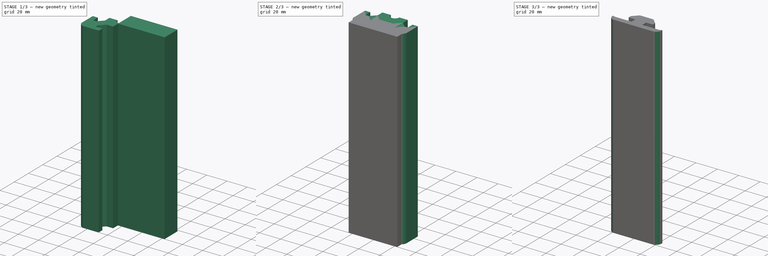
[diagram: build sequence overview — one tinted view per stage of 3, left to right]
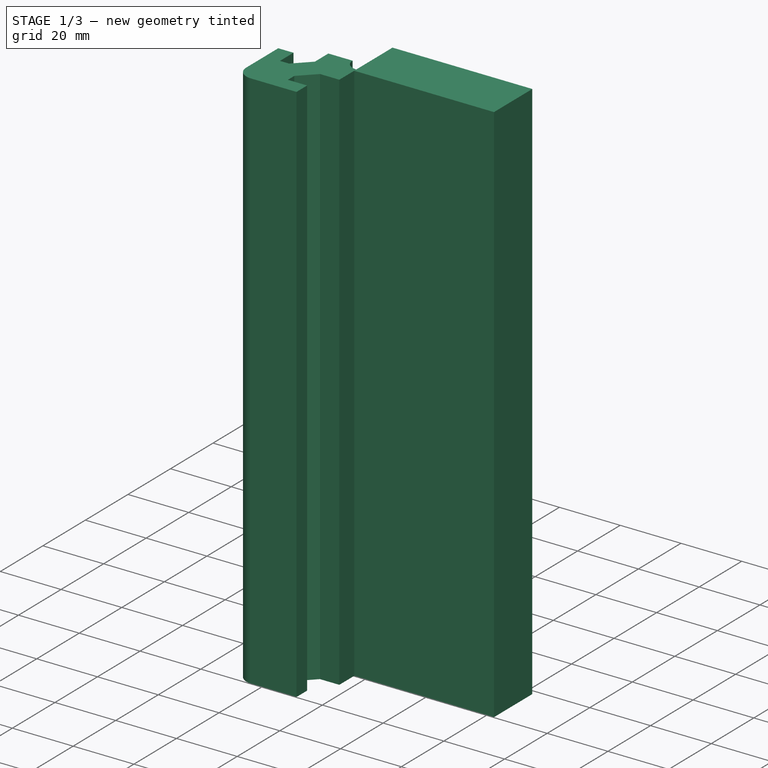
[diagram: stage 1 of 3 — iso view after this stage's code; geometry added in this stage tinted green]
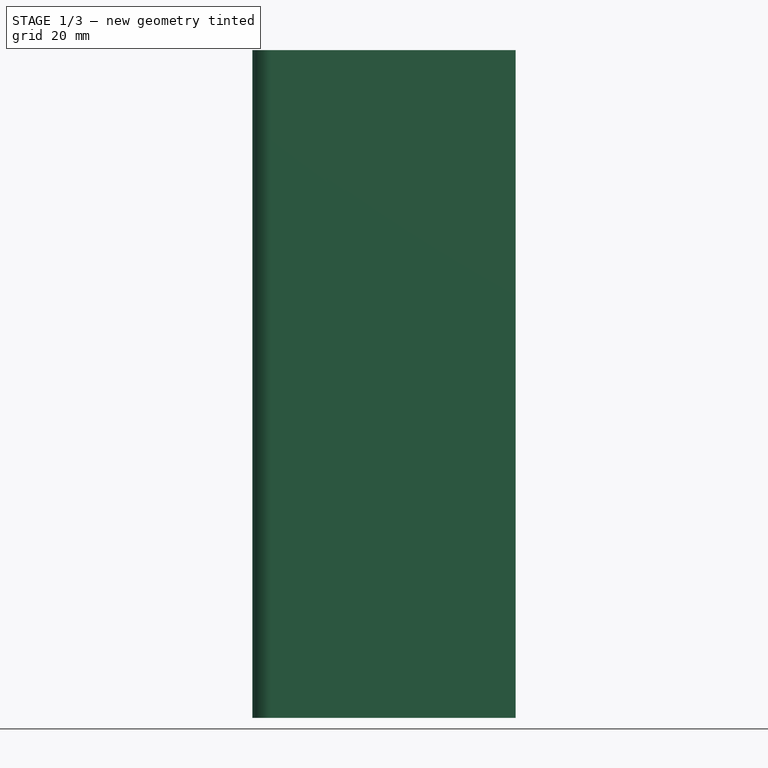
[diagram: stage 1 of 3 — front view after this stage's code; geometry added in this stage tinted green]
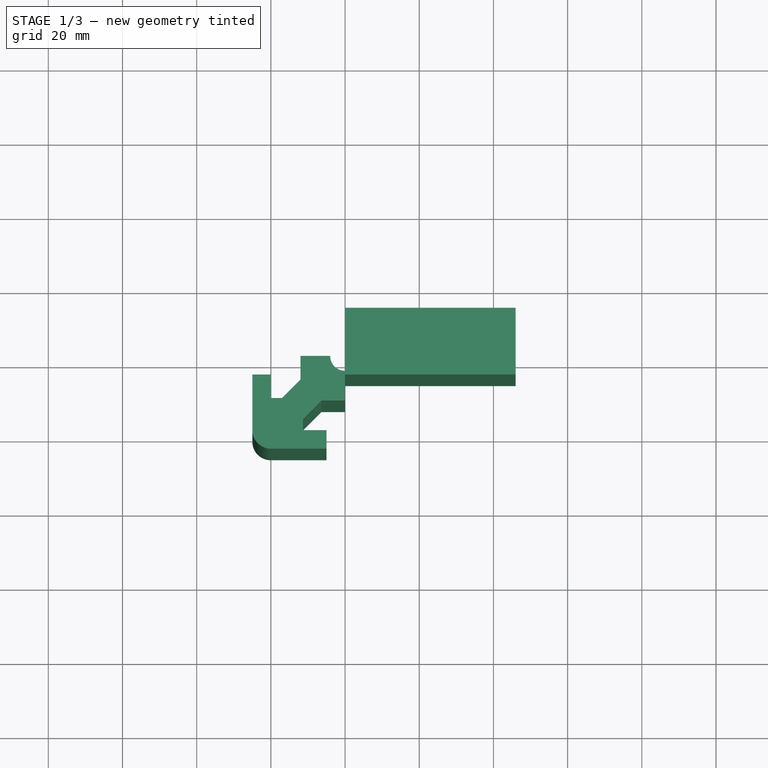
[diagram: stage 1 of 3 — top view after this stage's code; geometry added in this stage tinted green]
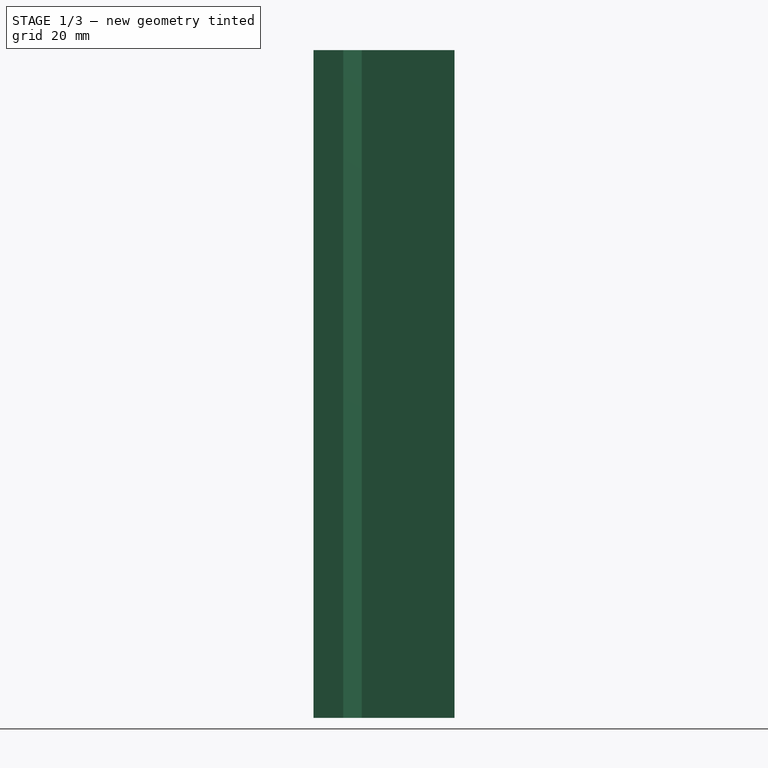
[diagram: stage 1 of 3 — right view after this stage's code; geometry added in this stage tinted green]
FCSTD DOCUMENT  (FreeCAD 0.15R4671 (Git))
Label: Untitled
License: CreativeCommons Attribution-NonCommercial-ShareAlike
LicenseURL: http://creativecommons.org/licenses/by-nc-sa/4.0/
objects: Sketcher::SketchObject×1, PartDesign::Pad×1, Part::Mirroring×1, Part::MultiFuse×1, Part::Box×1, Part::Cut×1, Part::Fillet×1
note: 8 computed .brp shape members not serialized (recipe doc carries the construction recipe); baked Part::Feature solids carry a one-line shape summary decoded from their .brp

FEATURE [Sketcher::SketchObject] Sketch
  sketch-geometry (17):
    g0: LineSegment StartX=-4.01 StartY=0 StartZ=0 EndX=-12.01 EndY=0 EndZ=0
    g1: LineSegment StartX=-12.01 StartY=0 StartZ=0 EndX=-12.01 EndY=-6.35315 EndZ=0
    g2: LineSegment StartX=-12.01 StartY=-6.35315 StartZ=0 EndX=-17 EndY=-11.3431 EndZ=0
    g3: LineSegment StartX=-17 StartY=-11.3431 StartZ=0 EndX=-20 EndY=-11.3431 EndZ=0
    g4: LineSegment StartX=-25 StartY=-5 StartZ=0 EndX=-25 EndY=-20 EndZ=0
    g5: LineSegment StartX=-20 StartY=-25 StartZ=0 EndX=-5 EndY=-25 EndZ=0
    g6: LineSegment StartX=-5 StartY=-25 StartZ=0 EndX=-5 EndY=-20 EndZ=0
    g7: LineSegment StartX=-5 StartY=-20 StartZ=0 EndX=-11.3431 EndY=-20 EndZ=0
    g8: LineSegment StartX=-11.3431 StartY=-20 StartZ=0 EndX=-11.3431 EndY=-17 EndZ=0
    g9: LineSegment StartX=-11.3431 StartY=-17 StartZ=0 EndX=-6.35315 EndY=-12.01 EndZ=0
    g10: LineSegment StartX=-6.35315 StartY=-12.01 StartZ=0 EndX=0 EndY=-12.01 EndZ=0
    g11: LineSegment StartX=0 StartY=-12.01 StartZ=0 EndX=0 EndY=-4.01 EndZ=0
    g12: ArcOfCircle CenterX=0 CenterY=0 CenterZ=0 NormalX=0 NormalY=0 NormalZ=1 Radius=4.01 StartAngle=3.14159 EndAngle=4.71239
    g13: LineSegment [constr] StartX=-12.01 StartY=-6.35315 StartZ=0 EndX=-6.35315 EndY=-12.01 EndZ=0
    g14: LineSegment StartX=-20 StartY=-11.3431 StartZ=0 EndX=-20 EndY=-5 EndZ=0
    g15: LineSegment StartX=-20 StartY=-5 StartZ=0 EndX=-25 EndY=-5 EndZ=0
    g16: ArcOfCircle CenterX=-20 CenterY=-20 CenterZ=0 NormalX=0 NormalY=0 NormalZ=1 Radius=5 StartAngle=3.14159 EndAngle=4.71239
  constraints (49):
    c: Coincident(g0,g1)
    c: Coincident(g1,g2)
    c: Coincident(g2,g3)
    c: Coincident(g5,g6)
    c: Coincident(g6,g7)
    c: Coincident(g7,g8)
    c: Coincident(g8,g9)
    c: Coincident(g9,g10)
    c: Coincident(g10,g11)
    c: Horizontal(g0)
    c: Vertical(g11)
    c: Radius(g12) = 4.01
    c: Coincident(g12,g-1)
    c: Equal(g0,g11)
    c: Vertical(g1)
    c: Horizontal(g10)
    c: Coincident(g1,g13)
    c: Coincident(g13,g9)
    c: Equal(g1,g10)
    c: Distance(g13) = 8
    c: Parallel(g2,g9)
    c: Vertical(g8)
    c: Horizontal(g3)
    c: Horizontal(g7)
    c: Horizontal(g5)
    c: DistanceY(g6) = 5
    c: DistanceX(g-1,g5) = -5
    c: Vertical(g6)
    c: DistanceY(g-1,g5) = -25
    c: Vertical(g4)
    c: Equal(g5,g4)
    c: Equal(g2,g9)
    c: Equal(g3,g8)
    c: Coincident(g14,g15)
    c: Coincident(g4,g15)
    c: Coincident(g3,g14)
    c: Equal(g6,g15)
    c: Vertical(g14)
    c: DistanceX(g3) = -3
    c: Coincident(g0,g12)
    c: Coincident(g11,g12)
    c: PointOnObject(g0,g-1)
    c: PointOnObject(g11,g-2)
    c: DistanceX(g0) = -8
    c: Horizontal(g15)
    c: Tangent(g4,g16) = -1.5708
    c: Tangent(g5,g16) = -1.5708
    c: DistanceX(g-1,g4) = -25
    c: Radius(g16) = 5
FEATURE [PartDesign::Pad] Pad
  Length = 180
  Length2 = 100
  Sketch = -> Sketch
  Type = 0
FEATURE [Part::Box] Box  label="Cubo"
  Height = 180
  Length = 46
  Placement = pos=(0,-5,0) rot=(0,0,1;0rad)
  Width = 18
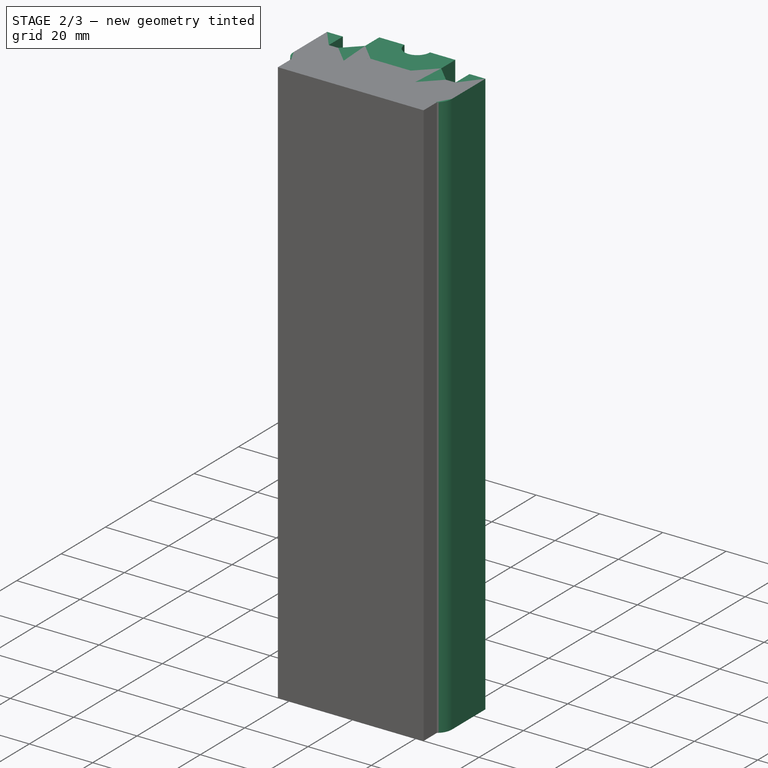
[diagram: stage 2 of 3 — iso view after this stage's code; geometry added in this stage tinted green]
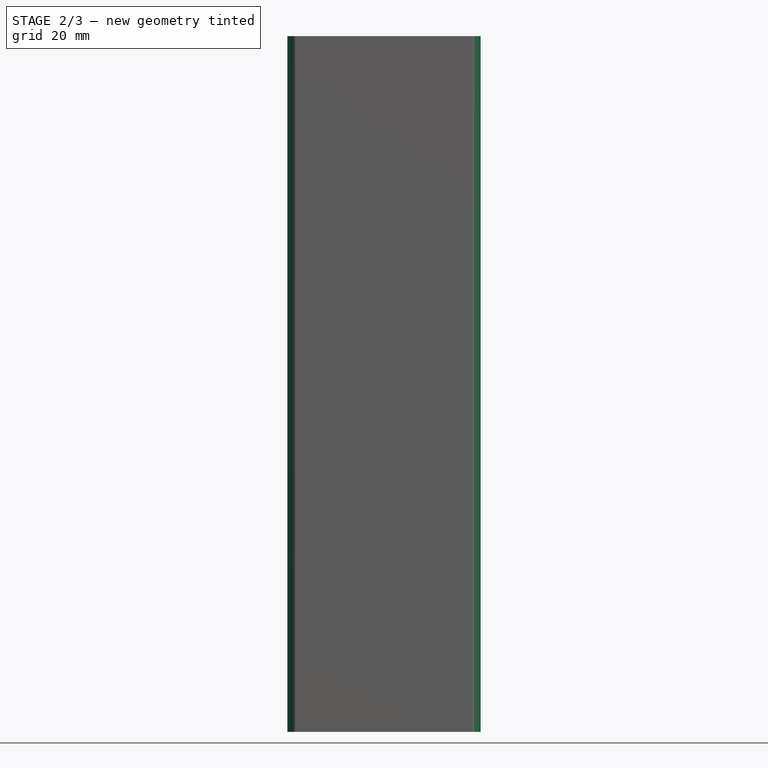
[diagram: stage 2 of 3 — front view after this stage's code; geometry added in this stage tinted green]
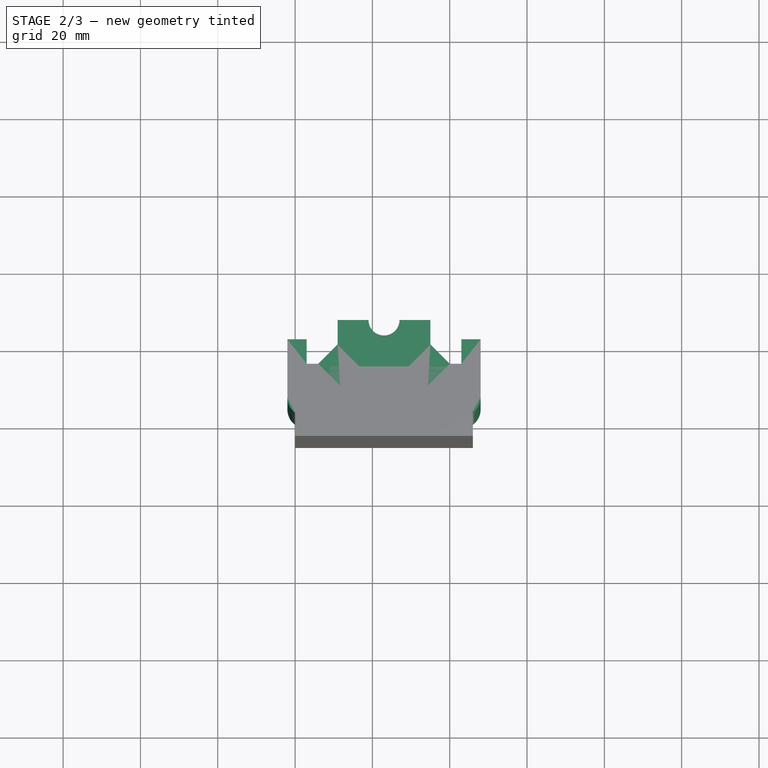
[diagram: stage 2 of 3 — top view after this stage's code; geometry added in this stage tinted green]
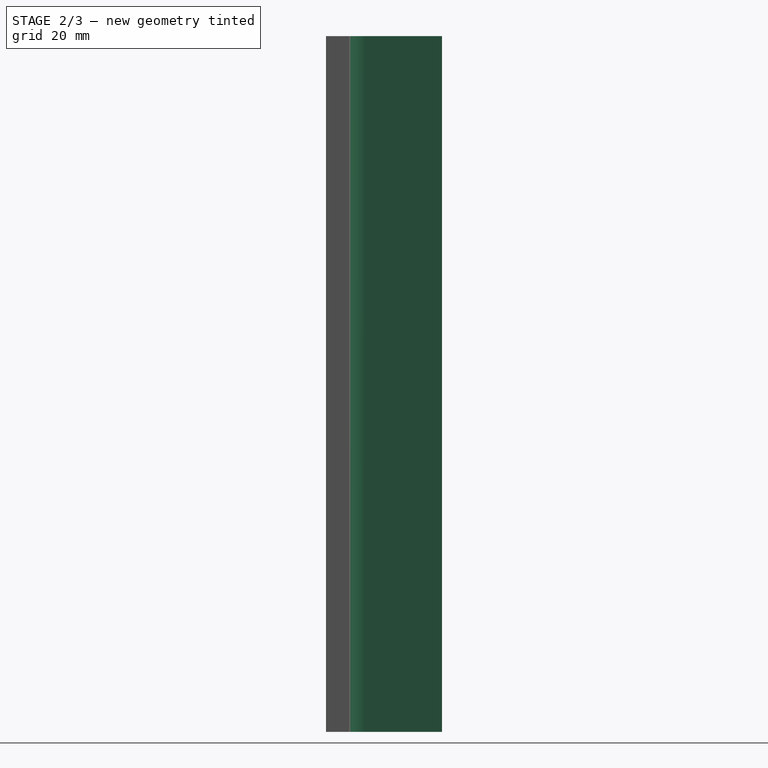
[diagram: stage 2 of 3 — right view after this stage's code; geometry added in this stage tinted green]
FEATURE [Part::Mirroring] Part__Mirroring  label="Pad (Mirror #1)"
  Base = (0,0,0)
  Normal = (0,1,0)
  Source = -> Pad
FEATURE [Part::MultiFuse] Fusion
  Placement = pos=(23,25,0) rot=(0,0,1;1.5708rad)
  Shapes = -> [Pad,Part__Mirroring]
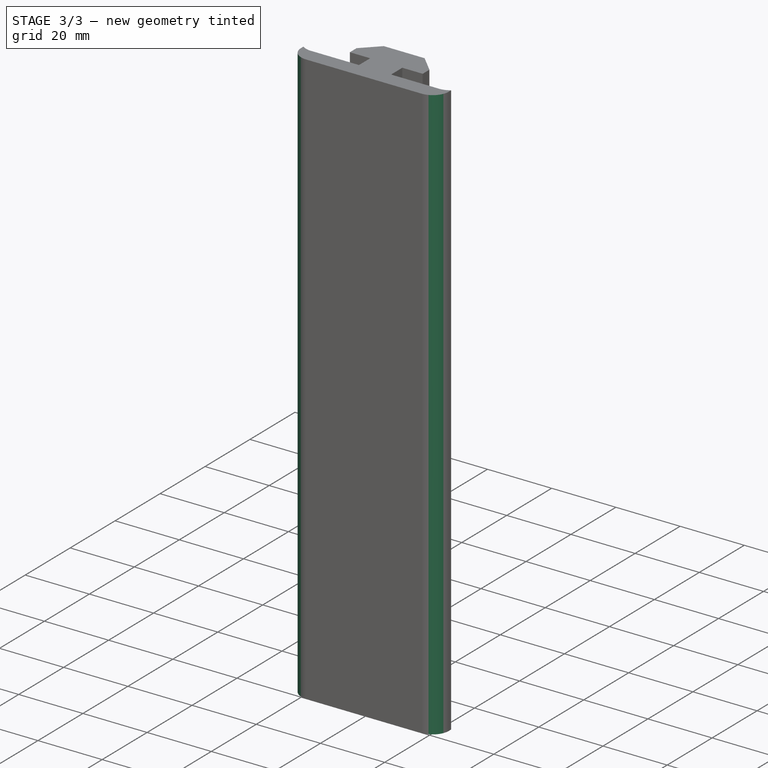
[diagram: stage 3 of 3 — iso view after this stage's code; geometry added in this stage tinted green]
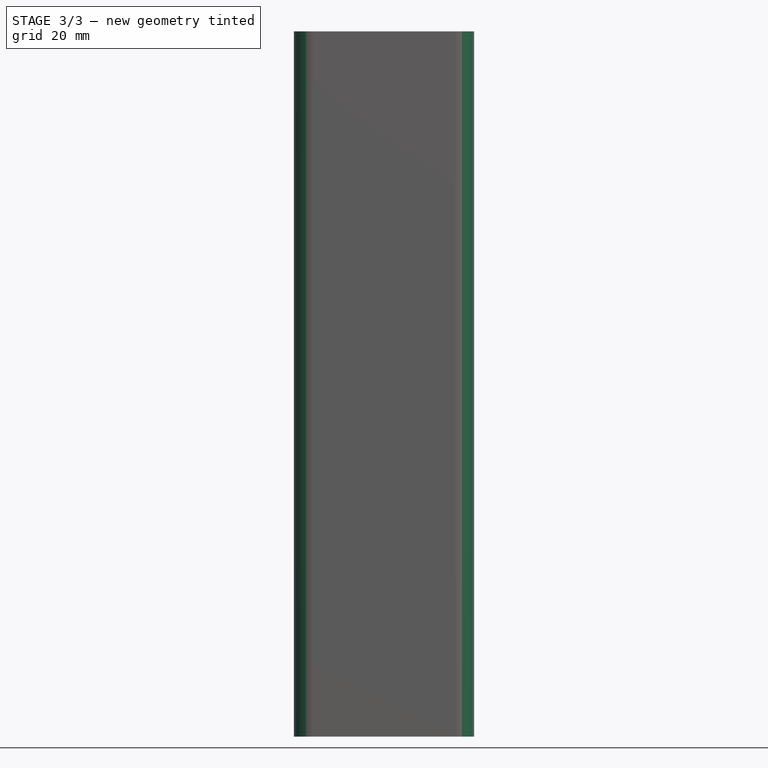
[diagram: stage 3 of 3 — front view after this stage's code; geometry added in this stage tinted green]
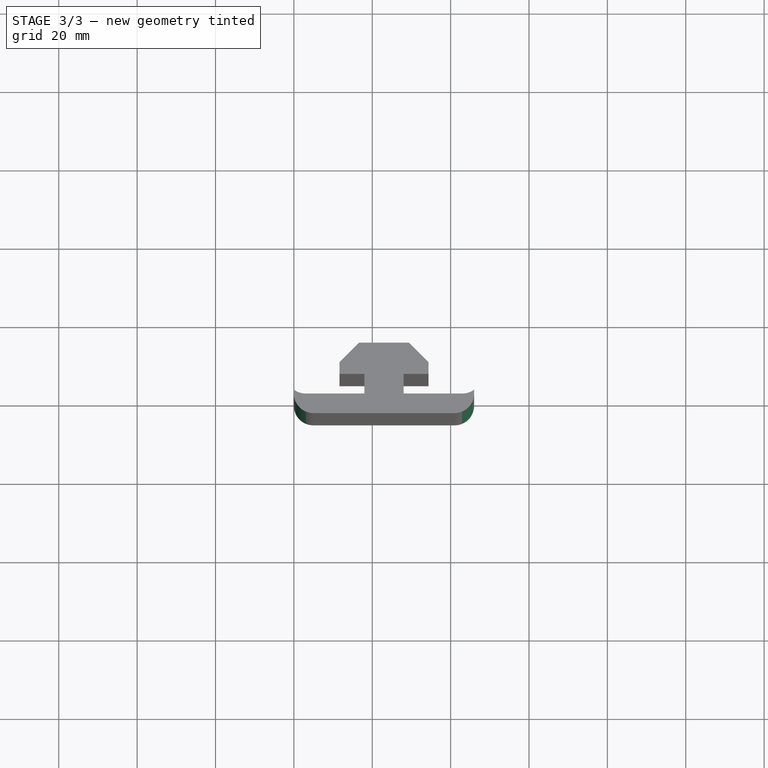
[diagram: stage 3 of 3 — top view after this stage's code; geometry added in this stage tinted green]
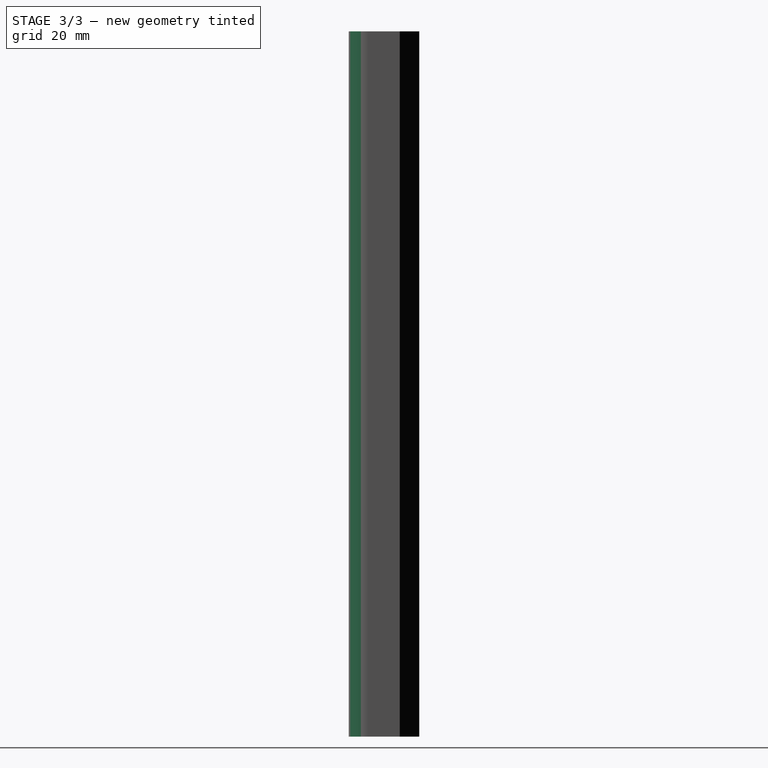
[diagram: stage 3 of 3 — right view after this stage's code; geometry added in this stage tinted green]
FEATURE [Part::Cut] Cut
  Base = -> Box
  Tool = -> Fusion
FEATURE [Part::Fillet] Fillet
  Base = -> Cut
  Edges = 2 edges r=5: [Edge4,Edge38]
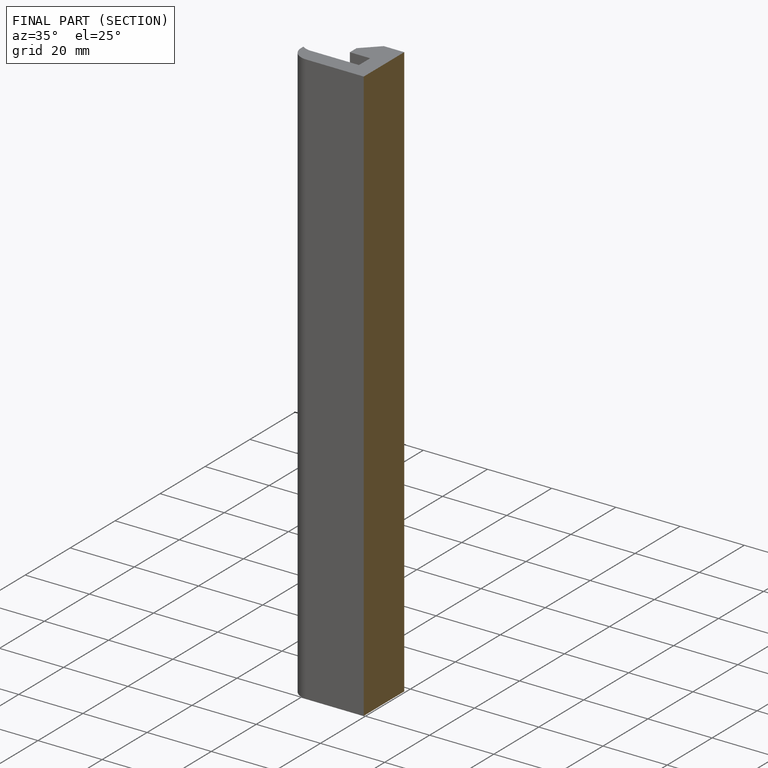
[diagram: finished part — half-section view (interior)]
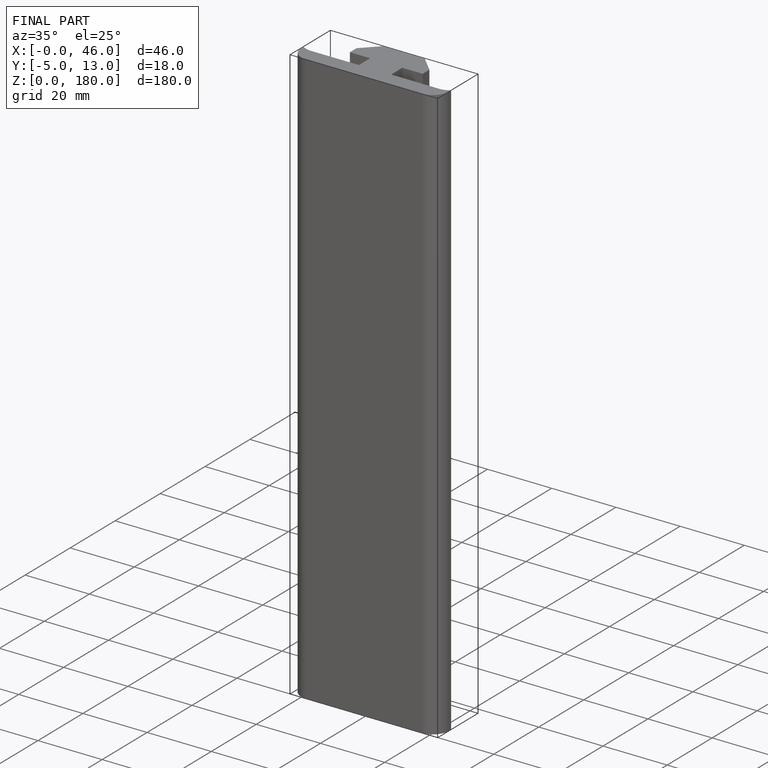
[diagram: finished part — iso view with bounding-box wireframe]
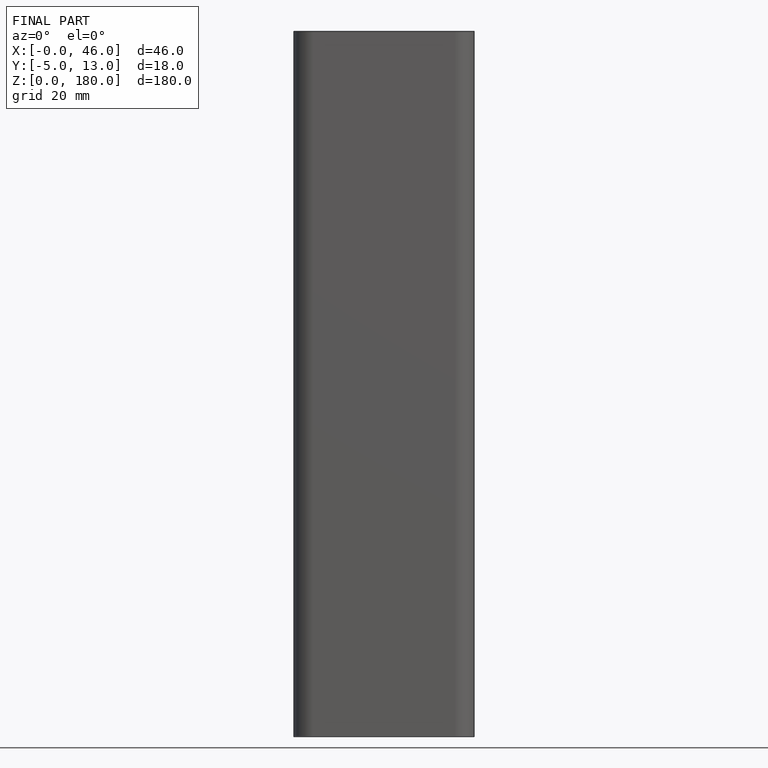
[diagram: finished part — front view with bounding-box wireframe]
